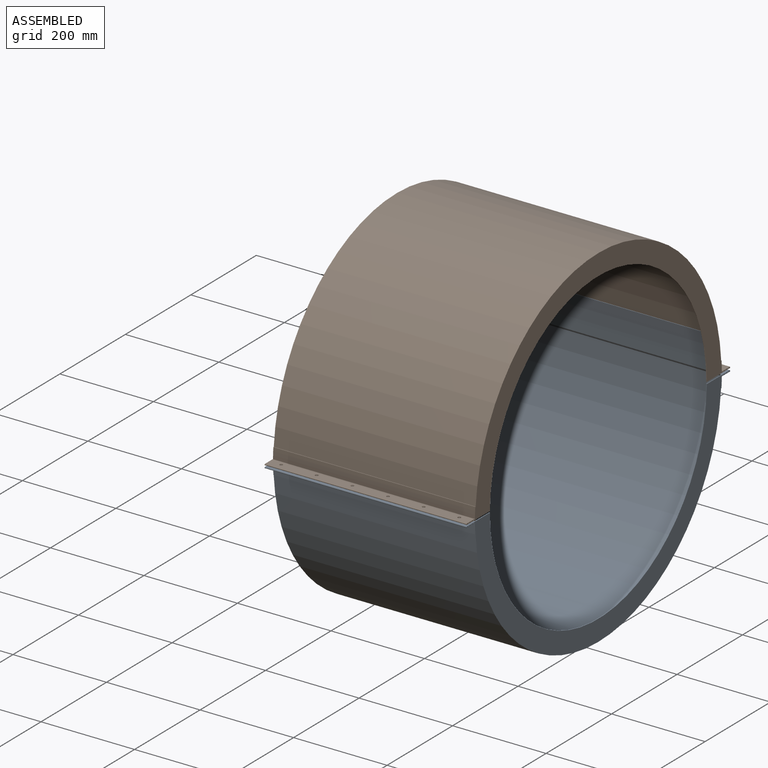
[diagram: assembled view]
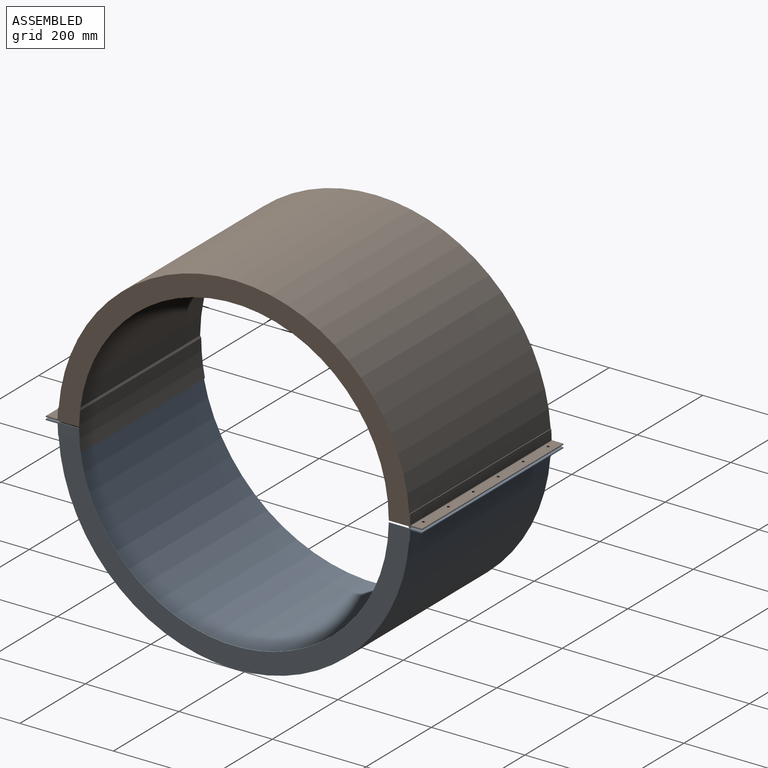
[diagram: assembled view, second angle]
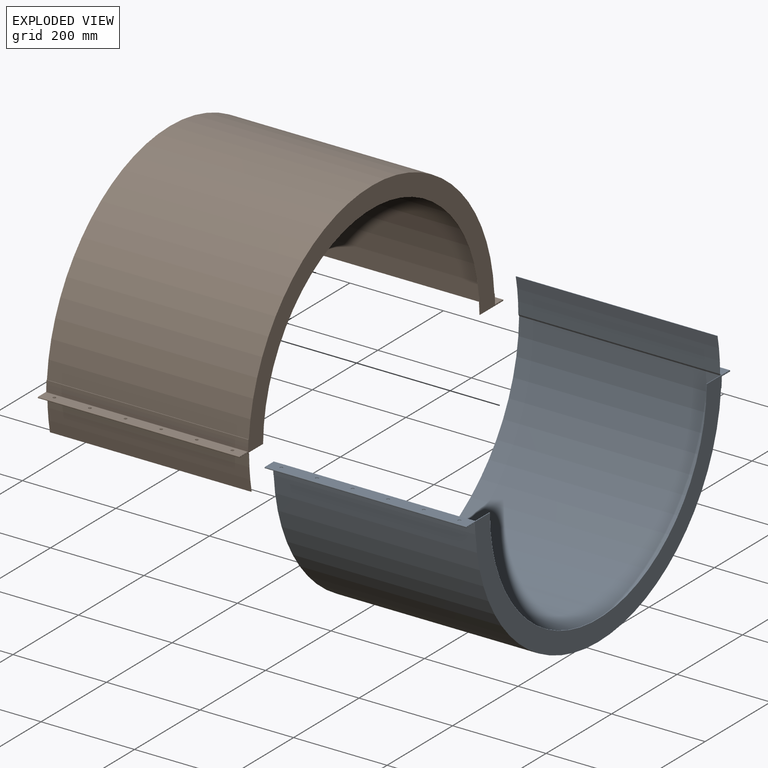
[diagram: exploded view]
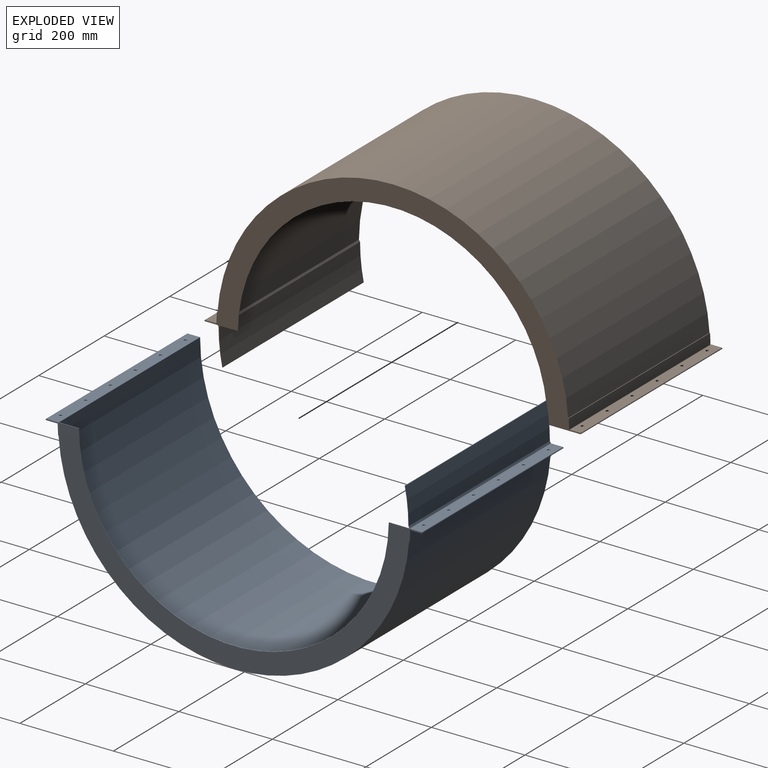
[diagram: exploded view, second angle]
ASSEMBLY  parts=2 mates=2
PART A: 44 faces, bbox 431.8x805.2x452.2 mm
  f0: plane 749.28x374.65mm, normal (1,0,0), area 47966mm2, adj f1,f7,f12,f14,f16
  f1: plane 430.58x4.18mm, normal (0,0.87,-0.5), area 2079.7mm2, adj f0,f5,f7,f8,f15
  f2: plane 430.58x3.9mm, normal (0,-0.87,0.5), area 1939.2mm2, adj f3,f8,f12,f15
  f3: cylinder r=373.43mm len=430.58mm, axis (-1,0,0), area 32901.6mm2, adj f2,f4,f8,f15
  f4: plane 430.58x1.26mm, normal (0,-0.07,1), area 545mm2, adj f3,f5,f8,f15
  f5: cylinder r=372.21mm len=430.58mm, axis (-1,0,0), area 33080.8mm2, adj f1,f4,f8,f15
  f6: plane 805.23x375.87mm, normal (-1,0,0), area 49573.8mm2, adj f9,f10,f11,f12,f13,f14,f16,f17
  f7: cylinder r=374.65mm len=749.28mm, axis (-1,0,0), area 504991.5mm2, adj f0,f1,f8,f16
  f8: plane 805.23x452.15mm, normal (1,0,0), area 1706.5mm2, adj f1,f2,f3,f4,f5,f7,f9,f10
  f9: plane 431.8x1.22mm, normal (0,0,-1), area 526.5mm2, adj f6,f8,f10,f13
  f10: cylinder r=381mm len=431.8mm, axis (-1,0,0), area 9818.6mm2, adj f6,f8,f9,f20
  f11: plane 431.8x23.01mm, normal (0,0,-1), area 9735.5mm2, adj f6,f8,f20,f28,f29,f30,f31,f32
  f12: plane 431.8x70.04mm, normal (0,0,1), area 10901.7mm2, adj f0,f2,f6,f8,f14,f15,f28,f29
  f13: cylinder r=375.87mm len=749.78mm, axis (-1,0,0), area 486499.3mm2, adj f6,f8,f9,f17
  f14: cylinder r=331.25mm len=662.48mm, axis (-1,0,0), area 1264.4mm2, adj f0,f6,f12,f16
  f15: plane 79.86x11.37mm, normal (-1,0,0), area 98.7mm2, adj f1,f2,f3,f4,f5,f12
  f16: plane 431.8x70.02mm, normal (0,0,1), area 11346.3mm2, adj f0,f6,f7,f8,f14,f22,f23,f24
  f17: plane 431.8x0.86mm, normal (0,0,-1), area 371mm2, adj f6,f8,f13,f19
  f18: plane 431.8x23.08mm, normal (0,0,-1), area 9763.9mm2, adj f6,f8,f21,f22,f23,f24,f25,f26
  f19: plane 431.8x23.02mm, normal (0,1,-0.05), area 9951.5mm2, adj f6,f8,f17,f21
  f20: cylinder r=1.22mm len=431.8mm, axis (-1,0,0), area 818.4mm2, adj f6,f8,f10,f11
  f21: cylinder r=1.22mm len=431.8mm, axis (-1,0,0), area 801.7mm2, adj f6,f8,f18,f19
  f22: cylinder r=3.26mm len=6.53mm, axis (0,0,1), area 25mm2, adj f16,f18
  f23: cylinder r=3.26mm len=6.53mm, axis (0,0,1), area 25mm2, adj f16,f18
  f24: cylinder r=3.26mm len=6.53mm, axis (0,0,1), area 25mm2, adj f16,f18
  f25: cylinder r=3.26mm len=6.53mm, axis (0,0,1), area 25mm2, adj f16,f18
  f26: cylinder r=3.26mm len=6.53mm, axis (0,0,1), area 25mm2, adj f16,f18
  f27: cylinder r=3.26mm len=6.53mm, axis (0,0,1), area 25mm2, adj f16,f18
  f28: cylinder r=3.26mm len=6.53mm, axis (0,0,1), area 25mm2, adj f11,f12
  f29: cylinder r=3.26mm len=6.53mm, axis (0,0,1), area 25mm2, adj f11,f12
  f30: cylinder r=3.26mm len=6.53mm, axis (0,0,1), area 25mm2, adj f11,f12
  f31: cylinder r=3.26mm len=6.53mm, axis (0,0,1), area 25mm2, adj f11,f12
  f32: cylinder r=3.26mm len=6.53mm, axis (0,0,1), area 25mm2, adj f11,f12
  f33: cylinder r=3.26mm len=6.53mm, axis (0,0,1), area 25mm2, adj f11,f12
  f34: plane 431.8x23.01mm, normal (0,0,-1), area 9936.4mm2, adj f6,f8,f35,f38
  f35: cylinder r=1.35mm len=431.8mm, axis (-1,0,0), area 1826.2mm2, adj f6,f8,f12,f34
  f36: cylinder r=0.13mm len=431.8mm, axis (-1,0,0), area 172.3mm2, adj f6,f8,f11,f37
  f37: plane 431.8x23.01mm, normal (0,0,1), area 9936.4mm2, adj f6,f8,f36,f38
  f38: plane 431.8x1.22mm, normal (0,1,0), area 526.5mm2, adj f6,f8,f34,f37
  f39: cylinder r=0.13mm len=431.8mm, axis (-1,0,0), area 172.3mm2, adj f6,f8,f18,f43
  f40: cylinder r=1.35mm len=431.8mm, axis (-1,0,0), area 1826.2mm2, adj f6,f8,f16,f41
  f41: plane 431.8x23.08mm, normal (0,0,-1), area 9964.8mm2, adj f6,f8,f40,f42
  f42: plane 431.8x1.22mm, normal (0,-1,0), area 526.5mm2, adj f6,f8,f41,f43
  f43: plane 431.8x23.08mm, normal (0,0,1), area 9964.8mm2, adj f6,f8,f39,f42
PART B: 56 faces, bbox 431.8x805.2x452.1 mm
  f0: cylinder r=374.65mm len=749.28mm, axis (-1,0,0), area 504991.5mm2, adj f2,f11,f12,f17
  f1: plane 805.23x375.87mm, normal (1,0,0), area 49580.3mm2, adj f3,f4,f5,f6,f12,f13,f14,f15
  f2: plane 805.23x452.07mm, normal (-1,0,0), area 1713mm2, adj f0,f3,f4,f5,f6,f7,f8,f9
  f3: plane 431.8x1.22mm, normal (0,0,1), area 526.5mm2, adj f1,f2,f4,f16
  f4: cylinder r=381mm len=431.8mm, axis (-1,0,0), area 9818.6mm2, adj f1,f2,f3,f20
  f5: plane 431.8x23.01mm, normal (0,0,1), area 9735.5mm2, adj f1,f2,f20,f24,f50,f51,f52,f53
  f6: plane 431.8x70.04mm, normal (0,0,-1), area 10901.8mm2, adj f1,f2,f7,f11,f17,f18,f19,f23
  f7: plane 430.53x3.9mm, normal (0,-0.87,-0.5), area 1939mm2, adj f2,f6,f8,f19
  f8: cylinder r=373.43mm len=430.53mm, axis (-1,0,0), area 32897.7mm2, adj f2,f7,f9,f19
  f9: plane 430.53x1.25mm, normal (0,0,-1), area 536.2mm2, adj f2,f8,f10,f19
  f10: cylinder r=372.21mm len=430.53mm, axis (-1,0,0), area 33040mm2, adj f2,f9,f11,f19
  f11: plane 430.58x4.18mm, normal (0,0.87,0.5), area 2079.5mm2, adj f0,f2,f6,f10,f17,f19
  f12: plane 431.8x70.02mm, normal (0,0,-1), area 11346.3mm2, adj f0,f1,f2,f17,f18,f27,f44,f45
  f13: plane 431.8x22.97mm, normal (0,0,1), area 9717.6mm2, adj f1,f2,f21,f31,f44,f45,f46,f47
  f14: cylinder r=381mm len=431.8mm, axis (-1,0,0), area 9373.6mm2, adj f1,f2,f15,f21
  f15: plane 431.8x1.22mm, normal (0,0,1), area 526.5mm2, adj f1,f2,f14,f16
  f16: cylinder r=375.87mm len=749.87mm, axis (-1,0,0), area 487052.4mm2, adj f1,f2,f3,f15
  f17: plane 749.28x374.65mm, normal (-1,0,0), area 47966mm2, adj f0,f6,f11,f12,f18
  f18: cylinder r=331.25mm len=662.48mm, axis (1,0,0), area 1264.4mm2, adj f1,f6,f12,f17
  f19: plane 79.77x11.35mm, normal (1,0,0), area 98.6mm2, adj f6,f7,f8,f9,f10,f11
  f20: cylinder r=1.22mm len=431.8mm, axis (-1,0,0), area 818.4mm2, adj f1,f2,f4,f5
  f21: cylinder r=1.22mm len=431.8mm, axis (-1,0,0), area 823.3mm2, adj f1,f2,f13,f14
  f22: plane 431.8x23.01mm, normal (0,0,1), area 9735.5mm2, adj f1,f2,f23,f26,f38,f39,f40,f41
  f23: cylinder r=1.35mm len=431.8mm, axis (1,0,0), area 1826.2mm2, adj f1,f2,f6,f22
  f24: cylinder r=0.13mm len=431.8mm, axis (1,0,0), area 172.3mm2, adj f1,f2,f5,f25
  f25: plane 431.8x23.01mm, normal (0,0,-1), area 9735.5mm2, adj f1,f2,f24,f26,f38,f39,f40,f41
  f26: plane 431.8x1.22mm, normal (0,1,0), area 526.5mm2, adj f1,f2,f22,f25
  f27: cylinder r=1.35mm len=431.8mm, axis (1,0,0), area 1826.2mm2, adj f1,f2,f12,f28
  f28: plane 431.8x22.97mm, normal (0,0,1), area 9717.6mm2, adj f1,f2,f27,f29,f32,f33,f34,f35
  f29: plane 431.8x1.22mm, normal (0,-1,0), area 526.5mm2, adj f1,f2,f28,f30
  f30: plane 431.8x22.97mm, normal (0,0,-1), area 9717.6mm2, adj f1,f2,f29,f31,f32,f33,f34,f35
  f31: cylinder r=0.13mm len=431.8mm, axis (1,0,0), area 172.3mm2, adj f1,f2,f13,f30
  f32: cylinder r=3.26mm len=6.53mm, axis (0,0,-1), area 25mm2, adj f28,f30
  f33: cylinder r=3.26mm len=6.53mm, axis (0,0,-1), area 25mm2, adj f28,f30
  f34: cylinder r=3.26mm len=6.53mm, axis (0,0,-1), area 25mm2, adj f28,f30
  f35: cylinder r=3.26mm len=6.53mm, axis (0,0,-1), area 25mm2, adj f28,f30
  f36: cylinder r=3.26mm len=6.53mm, axis (0,0,-1), area 25mm2, adj f28,f30
  f37: cylinder r=3.26mm len=6.53mm, axis (0,0,-1), area 25mm2, adj f28,f30
  f38: cylinder r=3.26mm len=6.53mm, axis (0,0,-1), area 25mm2, adj f22,f25
  f39: cylinder r=3.26mm len=6.53mm, axis (0,0,-1), area 25mm2, adj f22,f25
  f40: cylinder r=3.26mm len=6.53mm, axis (0,0,-1), area 25mm2, adj f22,f25
  f41: cylinder r=3.26mm len=6.53mm, axis (0,0,-1), area 25mm2, adj f22,f25
  f42: cylinder r=3.26mm len=6.53mm, axis (0,0,-1), area 25mm2, adj f22,f25
  f43: cylinder r=3.26mm len=6.53mm, axis (0,0,-1), area 25mm2, adj f22,f25
  f44: cylinder r=3.26mm len=6.53mm, axis (0,0,-1), area 25mm2, adj f12,f13
  f45: cylinder r=3.26mm len=6.53mm, axis (0,0,-1), area 25mm2, adj f12,f13
  f46: cylinder r=3.26mm len=6.53mm, axis (0,0,-1), area 25mm2, adj f12,f13
  f47: cylinder r=3.26mm len=6.53mm, axis (0,0,-1), area 25mm2, adj f12,f13
  f48: cylinder r=3.26mm len=6.53mm, axis (0,0,-1), area 25mm2, adj f12,f13
  f49: cylinder r=3.26mm len=6.53mm, axis (0,0,-1), area 25mm2, adj f12,f13
  f50: cylinder r=3.26mm len=6.53mm, axis (0,0,-1), area 25mm2, adj f5,f6
  f51: cylinder r=3.26mm len=6.53mm, axis (0,0,-1), area 25mm2, adj f5,f6
  f52: cylinder r=3.26mm len=6.53mm, axis (0,0,-1), area 25mm2, adj f5,f6
  f53: cylinder r=3.26mm len=6.53mm, axis (0,0,-1), area 25mm2, adj f5,f6
  f54: cylinder r=3.26mm len=6.53mm, axis (0,0,-1), area 25mm2, adj f5,f6
  f55: cylinder r=3.26mm len=6.53mm, axis (0,0,-1), area 25mm2, adj f5,f6
PLACE A rot(axis=(0,0,1),180deg) t=(431.8,0,0)mm
PLACE B at identity fixed
MATE cylindrical B.f16 <-> A.f3  axis (-1,0,0) through (215.9,0,0)mm
MATE planar A.f6 <-> B.f1  axis (1,0,0) through (431.8,-1.35,-225.33)mm
